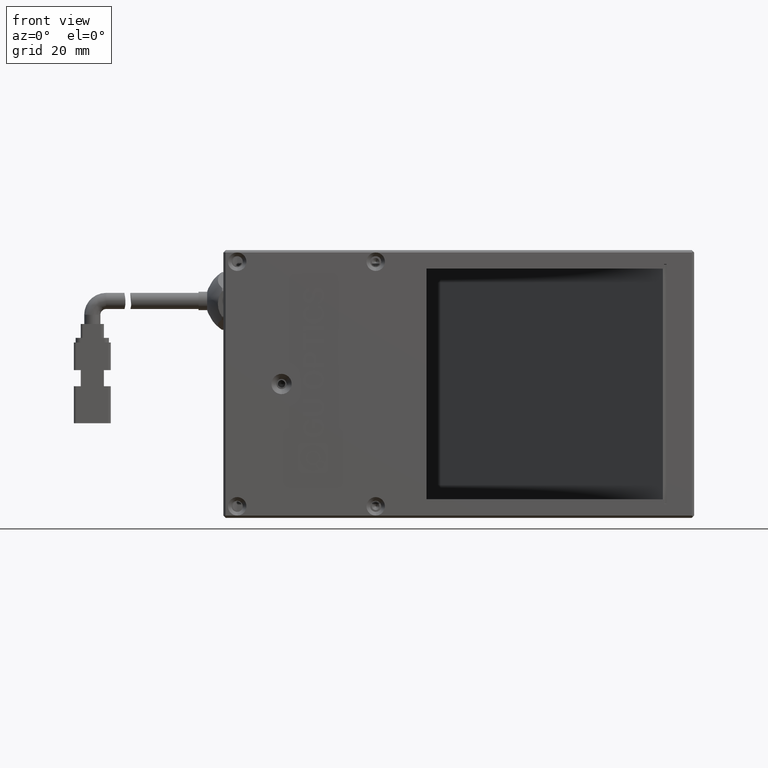
[diagram: clean part render]
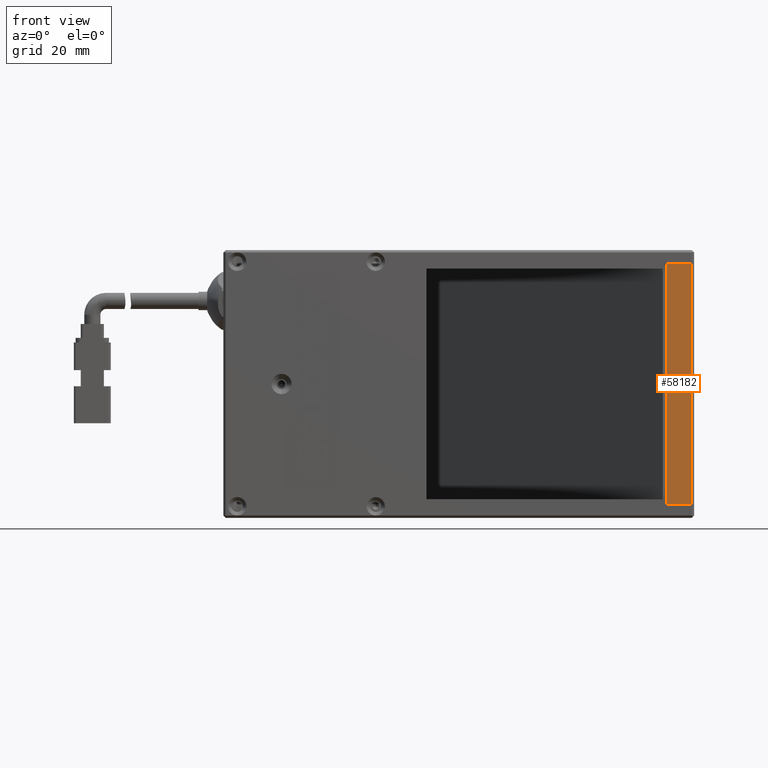
[diagram: same view with one face highlighted and labeled with its STEP entity id]
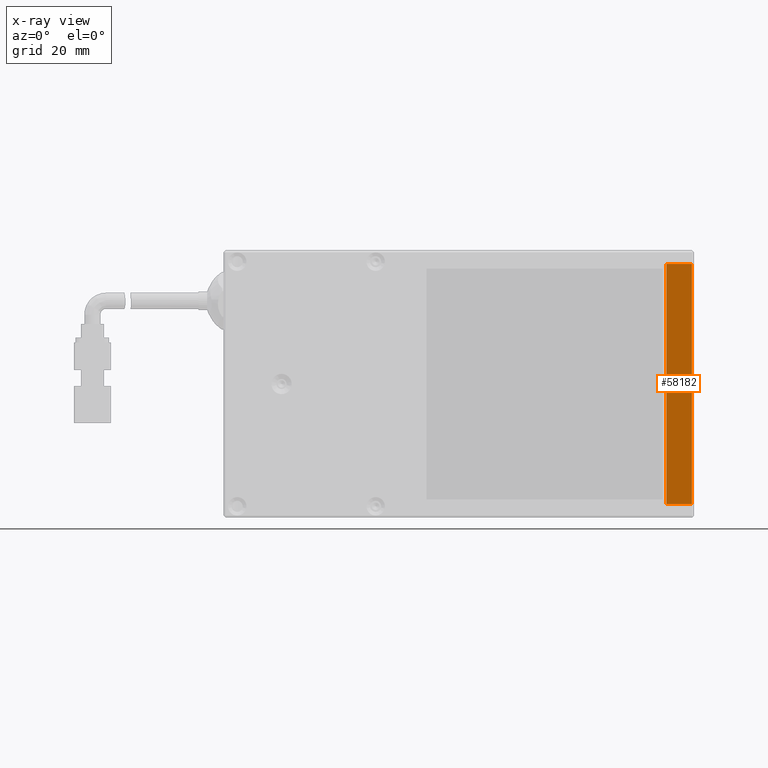
[diagram: x-ray of the same camera — body ghosted, the highlighted face saturated]
A machine part, front view. The second image highlights one B-rep face of the part: STEP entity #58182.
The next image is the same camera in x-ray: the body ghosted, the highlighted face saturated — about 0% of this face is hidden behind the body in this view.
In plain terms, the highlighted planar face has unit normal (-0, 1, -0).
Its self-contained STEP definition (entity closure, byte-faithful):
#1031 = LINE ( 'NONE', #15518, #55734 ) ;
#1221 = CARTESIAN_POINT ( 'NONE',  ( 27.42575077608851700, -7.723006669097390600, 3.000000000009550600 ) ) ;
#1474 = ORIENTED_EDGE ( 'NONE', *, *, #39488, .F. ) ;
#2537 = EDGE_LOOP ( 'NONE', ( #4936, #55678, #4202, #1474 ) ) ;
#4202 = ORIENTED_EDGE ( 'NONE', *, *, #18901, .F. ) ;
#4320 = CARTESIAN_POINT ( 'NONE',  ( 32.92575077608851300, -7.723006669097388000, 3.000000000009529700 ) ) ;
#4936 = ORIENTED_EDGE ( 'NONE', *, *, #25322, .F. ) ;
#8754 = EDGE_CURVE ( 'NONE', #9072, #53563, #13627, .T. ) ;
#9072 = VERTEX_POINT ( 'NONE', #66429 ) ;
#10790 = CARTESIAN_POINT ( 'NONE',  ( 32.92575077608850600, -7.723006669097370200, 55.00000000000955700 ) ) ;
#13205 = DIRECTION ( 'NONE',  ( -3.435095992033281000E-016, 1.000000000000000000, -3.435095992033282000E-016 ) ) ;
#13627 = LINE ( 'NONE', #42873, #54299 ) ;
#15518 = CARTESIAN_POINT ( 'NONE',  ( 27.42575077608850300, -7.723006669097372000, 55.00000000000955700 ) ) ;
#18901 = EDGE_CURVE ( 'NONE', #21406, #9072, #1031, .T. ) ;
#19129 = FACE_OUTER_BOUND ( 'NONE', #2537, .T. ) ;
#19722 = CARTESIAN_POINT ( 'NONE',  ( 33.42575077608852000, -7.723006669097388000, 3.000000000009550600 ) ) ;
#21406 = VERTEX_POINT ( 'NONE', #1221 ) ;
#25322 = EDGE_CURVE ( 'NONE', #53563, #47980, #28422, .T. ) ;
#28422 = LINE ( 'NONE', #29471, #42576 ) ;
#29471 = CARTESIAN_POINT ( 'NONE',  ( 32.92575077608850600, -7.723006669097370200, 55.00000000000955700 ) ) ;
#29625 = LINE ( 'NONE', #19722, #57104 ) ;
#37549 = DIRECTION ( 'NONE',  ( 1.000000000000000000, 3.435095992033282000E-016, 3.435095992033281500E-016 ) ) ;
#39488 = EDGE_CURVE ( 'NONE', #47980, #21406, #29625, .T. ) ;
#42576 = VECTOR ( 'NONE', #61250, 1000.000000000000000 ) ;
#42873 = CARTESIAN_POINT ( 'NONE',  ( 33.42575077608850600, -7.723006669097370200, 55.00000000000955700 ) ) ;
#45015 = CARTESIAN_POINT ( 'NONE',  ( 33.42575077608850600, -7.723006669097370200, 55.00000000000955700 ) ) ;
#47980 = VERTEX_POINT ( 'NONE', #4320 ) ;
#50286 = DIRECTION ( 'NONE',  ( 1.000000000000000000, 3.435095992033282000E-016, 3.435095992033281500E-016 ) ) ;
#52621 = DIRECTION ( 'NONE',  ( -3.435095992033282500E-016, 3.435095992033281000E-016, 1.000000000000000000 ) ) ;
#53563 = VERTEX_POINT ( 'NONE', #10790 ) ;
#54299 = VECTOR ( 'NONE', #37549, 1000.000000000000000 ) ;
#55400 = PLANE ( 'NONE',  #62658 ) ;
#55678 = ORIENTED_EDGE ( 'NONE', *, *, #8754, .F. ) ;
#55734 = VECTOR ( 'NONE', #52621, 1000.000000000000000 ) ;
#57104 = VECTOR ( 'NONE', #62179, 1000.000000000000000 ) ;
#58182 = ADVANCED_FACE ( 'NONE', ( #19129 ), #55400, .F. ) ;
#61250 = DIRECTION ( 'NONE',  ( 3.435095992033282500E-016, -3.435095992033281000E-016, -1.000000000000000000 ) ) ;
#62179 = DIRECTION ( 'NONE',  ( -1.000000000000000000, -3.435095992033282000E-016, -3.435095992033281500E-016 ) ) ;
#62658 = AXIS2_PLACEMENT_3D ( 'NONE', #45015, #13205, #50286 ) ;
#66429 = CARTESIAN_POINT ( 'NONE',  ( 27.42575077608850300, -7.723006669097372000, 55.00000000000955700 ) ) ;